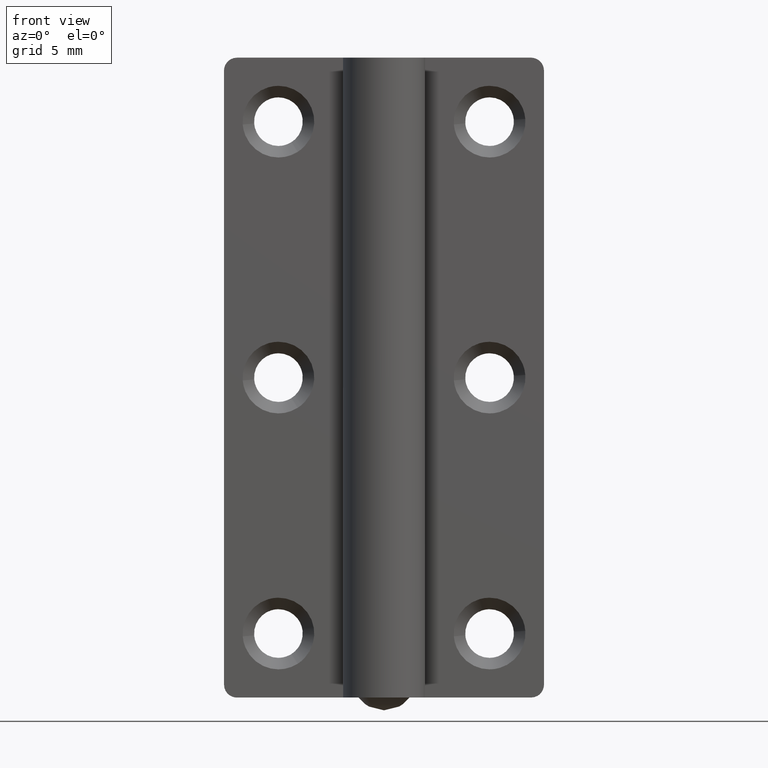
[diagram: clean part render]
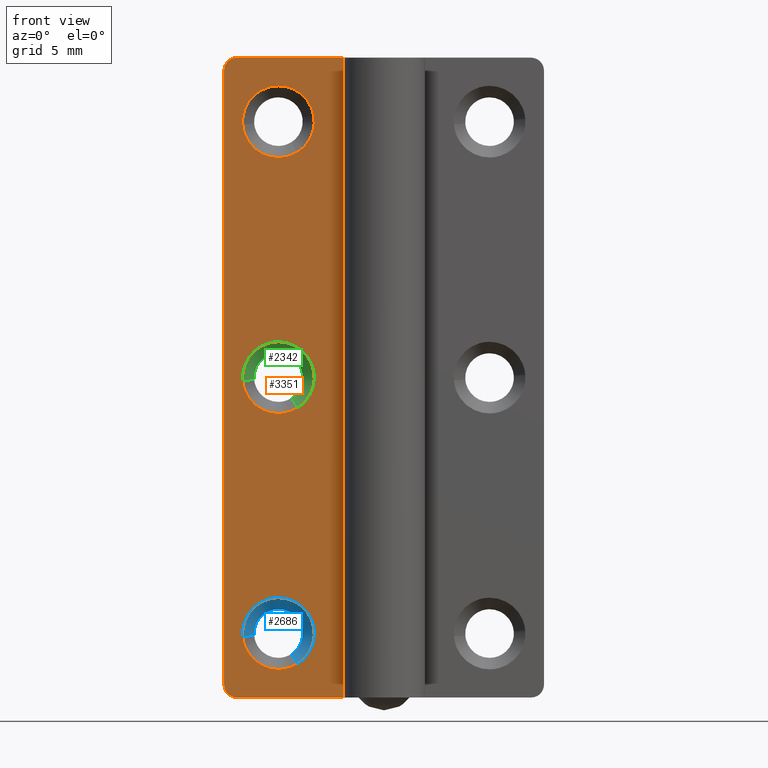
[diagram: same view with three faces highlighted in distinct colors, each labeled with its STEP entity id]
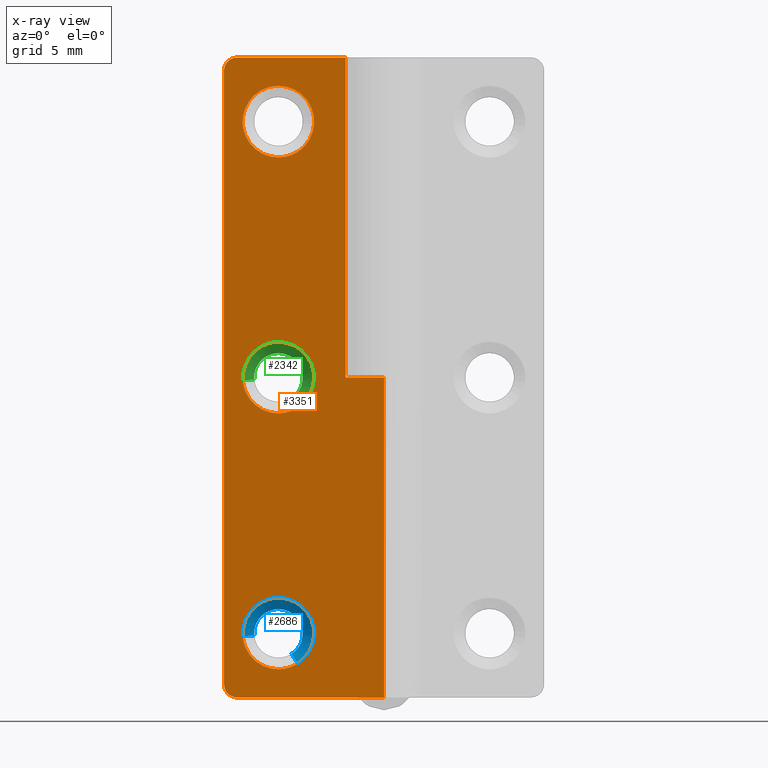
[diagram: x-ray of the same camera — body ghosted, the three highlighted faces saturated]
A machine part, front view with three faces highlighted in distinct colors.
The next image is the same camera in x-ray (body ghosted, the three faces saturated) — at least one of them is partly hidden behind the body in this view.
Their STEP definitions:

[orange] entity #3351 — the highlighted face is a freeform B-spline surface patch.
#1903=CARTESIAN_POINT('',(-6.744017771877991,1.999999999996397,42.639487853164482));
#1904=VERTEX_POINT('',#1903);
#1910=CARTESIAN_POINT('',(-8.250000000000000,2.0,47.800000011920929));
#1911=VERTEX_POINT('',#1910);
#1912=CARTESIAN_POINT('',(-8.250000000000000,2.0,47.800000011920929));
#1913=CARTESIAN_POINT('',(-5.449999988079070,2.000000000000000,47.800000011920929));
#1914=CARTESIAN_POINT('',(-5.449999988079070,2.0,45.0));
#1915=CARTESIAN_POINT('',(-5.449999988079069,2.000000000000000,43.465057756714870));
#1916=CARTESIAN_POINT('',(-6.744017771877993,1.999999999996397,42.639487853164475));
#1924=(BOUNDED_CURVE()B_SPLINE_CURVE(2,(#1912,#1913,#1914,#1915,#1916),.UNSPECIFIED.,.F.,.U.)B_SPLINE_CURVE_WITH_KNOTS((3,2,3),(0.0,0.250000000000000,0.407950112619935),.UNSPECIFIED.)CURVE()GEOMETRIC_REPRESENTATION_ITEM()RATIONAL_B_SPLINE_CURVE((1.0,0.707106781186548,1.0,0.814949932411200,0.863729296950220))REPRESENTATION_ITEM(''));
#1925=EDGE_CURVE('',#1911,#1904,#1924,.T.);
#1927=CARTESIAN_POINT('',(-11.041368546347060,1.999999999974803,44.780314530834119));
#1928=VERTEX_POINT('',#1927);
#1929=CARTESIAN_POINT('',(-11.041368546347053,1.999999999974804,44.780314530834119));
#1930=CARTESIAN_POINT('',(-11.050000011920927,2.000000000000000,44.889987699718631));
#1931=CARTESIAN_POINT('',(-11.050000011920931,2.0,45.0));
#1932=CARTESIAN_POINT('',(-11.050000011920931,2.000000000000000,47.800000011920929));
#1933=CARTESIAN_POINT('',(-8.250000000000000,2.0,47.800000011920929));
#1941=(BOUNDED_CURVE()B_SPLINE_CURVE(2,(#1929,#1930,#1931,#1932,#1933),.UNSPECIFIED.,.F.,.U.)B_SPLINE_CURVE_WITH_KNOTS((3,2,3),(0.736331300609352,0.750000000000000,1.0),.UNSPECIFIED.)CURVE()GEOMETRIC_REPRESENTATION_ITEM()RATIONAL_B_SPLINE_CURVE((0.969723356122951,0.983986122553919,1.0,0.707106781186548,1.0))REPRESENTATION_ITEM(''));
#1942=EDGE_CURVE('',#1928,#1911,#1941,.T.);
#2046=CARTESIAN_POINT('',(-8.250000000000000,2.0,42.199999988079057));
#2047=VERTEX_POINT('',#2046);
#2048=CARTESIAN_POINT('',(-8.250000000000000,2.0,42.199999988079057));
#2049=CARTESIAN_POINT('',(-10.838293387307939,2.000000000000000,42.199999988079071));
#2050=CARTESIAN_POINT('',(-11.041368546347060,1.999999999974804,44.780314530834119));
#2058=(BOUNDED_CURVE()B_SPLINE_CURVE(2,(#2048,#2049,#2050),.UNSPECIFIED.,.F.,.U.)B_SPLINE_CURVE_WITH_KNOTS((3,3),(0.500000000000000,0.736331300609351),.UNSPECIFIED.)CURVE()GEOMETRIC_REPRESENTATION_ITEM()RATIONAL_B_SPLINE_CURVE((1.0,0.723120658632630,0.969723356122949))REPRESENTATION_ITEM(''));
#2059=EDGE_CURVE('',#2047,#1928,#2058,.T.);
#2061=CARTESIAN_POINT('',(-6.744017771877993,1.999999999996397,42.639487853164475));
#2062=CARTESIAN_POINT('',(-7.432881441383225,2.0,42.199999988079071));
#2063=CARTESIAN_POINT('',(-8.250000000000000,2.0,42.199999988079057));
#2071=(BOUNDED_CURVE()B_SPLINE_CURVE(2,(#2061,#2062,#2063),.UNSPECIFIED.,.F.,.U.)B_SPLINE_CURVE_WITH_KNOTS((3,3),(0.407950112619935,0.500000000000000),.UNSPECIFIED.)CURVE()GEOMETRIC_REPRESENTATION_ITEM()RATIONAL_B_SPLINE_CURVE((0.863729296950220,0.892156848775348,1.0))REPRESENTATION_ITEM(''));
#2072=EDGE_CURVE('',#1904,#2047,#2071,.T.);
#2247=CARTESIAN_POINT('',(-6.744017771877992,1.999999999996397,22.639487853164479));
#2248=VERTEX_POINT('',#2247);
#2254=CARTESIAN_POINT('',(-8.250000000000000,2.0,27.800000011920929));
#2255=VERTEX_POINT('',#2254);
#2256=CARTESIAN_POINT('',(-8.250000000000000,2.0,27.800000011920929));
#2257=CARTESIAN_POINT('',(-5.449999988079070,2.000000000000000,27.800000011920940));
#2258=CARTESIAN_POINT('',(-5.449999988079070,2.0,25.0));
#2259=CARTESIAN_POINT('',(-5.449999988079069,2.000000000000000,23.465057756714874));
#2260=CARTESIAN_POINT('',(-6.744017771877993,1.999999999996397,22.639487853164482));
#2268=(BOUNDED_CURVE()B_SPLINE_CURVE(2,(#2256,#2257,#2258,#2259,#2260),.UNSPECIFIED.,.F.,.U.)B_SPLINE_CURVE_WITH_KNOTS((3,2,3),(0.0,0.250000000000000,0.407950112619935),.UNSPECIFIED.)CURVE()GEOMETRIC_REPRESENTATION_ITEM()RATIONAL_B_SPLINE_CURVE((1.0,0.707106781186548,1.0,0.814949932411200,0.863729296950220))REPRESENTATION_ITEM(''));
#2269=EDGE_CURVE('',#2255,#2248,#2268,.T.);
#2271=CARTESIAN_POINT('',(-11.041368546347060,1.999999999974803,24.780314530834112));
#2272=VERTEX_POINT('',#2271);
#2273=CARTESIAN_POINT('',(-11.041368546347060,1.999999999974803,24.780314530834108));
#2274=CARTESIAN_POINT('',(-11.050000011920927,2.000000000000000,24.889987699718624));
#2275=CARTESIAN_POINT('',(-11.050000011920931,2.0,25.0));
#2276=CARTESIAN_POINT('',(-11.050000011920931,2.000000000000000,27.800000011920940));
#2277=CARTESIAN_POINT('',(-8.250000000000000,2.0,27.800000011920929));
#2285=(BOUNDED_CURVE()B_SPLINE_CURVE(2,(#2273,#2274,#2275,#2276,#2277),.UNSPECIFIED.,.F.,.U.)B_SPLINE_CURVE_WITH_KNOTS((3,2,3),(0.736331300609351,0.750000000000000,1.0),.UNSPECIFIED.)CURVE()GEOMETRIC_REPRESENTATION_ITEM()RATIONAL_B_SPLINE_CURVE((0.969723356122949,0.983986122553918,1.0,0.707106781186548,1.0))REPRESENTATION_ITEM(''));
#2286=EDGE_CURVE('',#2272,#2255,#2285,.T.);
#2390=CARTESIAN_POINT('',(-8.250000000000000,2.0,22.199999988079071));
#2391=VERTEX_POINT('',#2390);
#2392=CARTESIAN_POINT('',(-8.250000000000000,2.0,22.199999988079071));
#2393=CARTESIAN_POINT('',(-10.838293387307939,2.000000000000000,22.199999988079071));
#2394=CARTESIAN_POINT('',(-11.041368546347060,1.999999999974803,24.780314530834108));
#2402=(BOUNDED_CURVE()B_SPLINE_CURVE(2,(#2392,#2393,#2394),.UNSPECIFIED.,.F.,.U.)B_SPLINE_CURVE_WITH_KNOTS((3,3),(0.500000000000000,0.736331300609351),.UNSPECIFIED.)CURVE()GEOMETRIC_REPRESENTATION_ITEM()RATIONAL_B_SPLINE_CURVE((1.0,0.723120658632630,0.969723356122949))REPRESENTATION_ITEM(''));
#2403=EDGE_CURVE('',#2391,#2272,#2402,.T.);
#2405=CARTESIAN_POINT('',(-6.744017771877993,1.999999999996397,22.639487853164482));
#2406=CARTESIAN_POINT('',(-7.432881441383225,2.0,22.199999988079075));
#2407=CARTESIAN_POINT('',(-8.250000000000000,2.0,22.199999988079071));
#2415=(BOUNDED_CURVE()B_SPLINE_CURVE(2,(#2405,#2406,#2407),.UNSPECIFIED.,.F.,.U.)B_SPLINE_CURVE_WITH_KNOTS((3,3),(0.407950112619935,0.500000000000000),.UNSPECIFIED.)CURVE()GEOMETRIC_REPRESENTATION_ITEM()RATIONAL_B_SPLINE_CURVE((0.863729296950220,0.892156848775348,1.0))REPRESENTATION_ITEM(''));
#2416=EDGE_CURVE('',#2248,#2391,#2415,.T.);
#2591=CARTESIAN_POINT('',(-6.744017771877991,1.999999999996397,2.639487853164477));
#2592=VERTEX_POINT('',#2591);
#2598=CARTESIAN_POINT('',(-8.250000000000000,2.0,7.800000011920930));
#2599=VERTEX_POINT('',#2598);
#2600=CARTESIAN_POINT('',(-8.250000000000000,2.0,7.800000011920930));
#2601=CARTESIAN_POINT('',(-5.449999988079070,2.000000000000000,7.800000011920929));
#2602=CARTESIAN_POINT('',(-5.449999988079070,2.0,5.0));
#2603=CARTESIAN_POINT('',(-5.449999988079069,2.000000000000000,3.465057756714876));
#2604=CARTESIAN_POINT('',(-6.744017771877993,1.999999999996397,2.639487853164477));
#2612=(BOUNDED_CURVE()B_SPLINE_CURVE(2,(#2600,#2601,#2602,#2603,#2604),.UNSPECIFIED.,.F.,.U.)B_SPLINE_CURVE_WITH_KNOTS((3,2,3),(0.0,0.250000000000000,0.407950112619935),.UNSPECIFIED.)CURVE()GEOMETRIC_REPRESENTATION_ITEM()RATIONAL_B_SPLINE_CURVE((1.0,0.707106781186548,1.0,0.814949932411200,0.863729296950220))REPRESENTATION_ITEM(''));
#2613=EDGE_CURVE('',#2599,#2592,#2612,.T.);
#2615=CARTESIAN_POINT('',(-11.041368546347060,1.999999999974804,4.780314530834112));
#2616=VERTEX_POINT('',#2615);
#2617=CARTESIAN_POINT('',(-11.041368546347055,1.999999999974804,4.780314530834112));
#2618=CARTESIAN_POINT('',(-11.050000011920934,2.000000000000000,4.889987699718628));
#2619=CARTESIAN_POINT('',(-11.050000011920931,2.0,5.0));
#2620=CARTESIAN_POINT('',(-11.050000011920931,2.000000000000000,7.800000011920929));
#2621=CARTESIAN_POINT('',(-8.250000000000000,2.0,7.800000011920930));
#2629=(BOUNDED_CURVE()B_SPLINE_CURVE(2,(#2617,#2618,#2619,#2620,#2621),.UNSPECIFIED.,.F.,.U.)B_SPLINE_CURVE_WITH_KNOTS((3,2,3),(0.736331300609352,0.750000000000000,1.0),.UNSPECIFIED.)CURVE()GEOMETRIC_REPRESENTATION_ITEM()RATIONAL_B_SPLINE_CURVE((0.969723356122950,0.983986122553918,1.0,0.707106781186548,1.0))REPRESENTATION_ITEM(''));
#2630=EDGE_CURVE('',#2616,#2599,#2629,.T.);
#2734=CARTESIAN_POINT('',(-8.250000000000000,2.0,2.199999988079070));
#2735=VERTEX_POINT('',#2734);
#2736=CARTESIAN_POINT('',(-8.250000000000000,2.0,2.199999988079070));
#2737=CARTESIAN_POINT('',(-10.838293387307939,2.000000000000000,2.199999988079071));
#2738=CARTESIAN_POINT('',(-11.041368546347060,1.999999999974804,4.780314530834112));
#2746=(BOUNDED_CURVE()B_SPLINE_CURVE(2,(#2736,#2737,#2738),.UNSPECIFIED.,.F.,.U.)B_SPLINE_CURVE_WITH_KNOTS((3,3),(0.500000000000000,0.736331300609351),.UNSPECIFIED.)CURVE()GEOMETRIC_REPRESENTATION_ITEM()RATIONAL_B_SPLINE_CURVE((1.0,0.723120658632630,0.969723356122949))REPRESENTATION_ITEM(''));
#2747=EDGE_CURVE('',#2735,#2616,#2746,.T.);
#2749=CARTESIAN_POINT('',(-6.744017771877993,1.999999999996397,2.639487853164477));
#2750=CARTESIAN_POINT('',(-7.432881441383225,2.0,2.199999988079070));
#2751=CARTESIAN_POINT('',(-8.250000000000000,2.0,2.199999988079070));
#2759=(BOUNDED_CURVE()B_SPLINE_CURVE(2,(#2749,#2750,#2751),.UNSPECIFIED.,.F.,.U.)B_SPLINE_CURVE_WITH_KNOTS((3,3),(0.407950112619935,0.500000000000000),.UNSPECIFIED.)CURVE()GEOMETRIC_REPRESENTATION_ITEM()RATIONAL_B_SPLINE_CURVE((0.863729296950220,0.892156848775348,1.0))REPRESENTATION_ITEM(''));
#2760=EDGE_CURVE('',#2592,#2735,#2759,.T.);
#2899=CARTESIAN_POINT('',(-3.0,2.0,25.0));
#2900=VERTEX_POINT('',#2899);
#2901=CARTESIAN_POINT('',(-3.0,2.0,50.0));
#2902=VERTEX_POINT('',#2901);
#2903=CARTESIAN_POINT('',(-3.0,2.0,25.0));
#2904=CARTESIAN_POINT('',(-3.0,2.0,50.0));
#2905=QUASI_UNIFORM_CURVE('',1,(#2903,#2904),.UNSPECIFIED.,.F.,.U.);
#2906=EDGE_CURVE('',#2900,#2902,#2905,.T.);
#2964=CARTESIAN_POINT('',(0.0,2.0,25.0));
#2965=VERTEX_POINT('',#2964);
#2966=CARTESIAN_POINT('',(0.0,2.0,25.0));
#2967=CARTESIAN_POINT('',(-3.0,2.0,25.0));
#2968=QUASI_UNIFORM_CURVE('',1,(#2966,#2967),.UNSPECIFIED.,.F.,.U.);
#2969=EDGE_CURVE('',#2965,#2900,#2968,.T.);
#3014=CARTESIAN_POINT('',(-11.500000000000000,2.0,50.0));
#3015=VERTEX_POINT('',#3014);
#3016=CARTESIAN_POINT('',(-12.500000000000000,2.0,49.0));
#3017=VERTEX_POINT('',#3016);
#3018=CARTESIAN_POINT('',(-11.500000000000000,2.0,50.0));
#3019=CARTESIAN_POINT('',(-12.500000000000000,2.000000000000000,50.0));
#3020=CARTESIAN_POINT('',(-12.500000000000000,2.0,49.0));
#3028=(BOUNDED_CURVE()B_SPLINE_CURVE(2,(#3018,#3019,#3020),.UNSPECIFIED.,.F.,.U.)CURVE()GEOMETRIC_REPRESENTATION_ITEM()QUASI_UNIFORM_CURVE()RATIONAL_B_SPLINE_CURVE((1.0,0.707106781186548,1.0))REPRESENTATION_ITEM(''));
#3029=EDGE_CURVE('',#3015,#3017,#3028,.T.);
#3075=CARTESIAN_POINT('',(-12.500000000000000,2.0,1.0));
#3076=VERTEX_POINT('',#3075);
#3077=CARTESIAN_POINT('',(-11.500000000000000,2.0,0.0));
#3078=VERTEX_POINT('',#3077);
#3079=CARTESIAN_POINT('',(-12.500000000000000,2.0,1.0));
#3080=CARTESIAN_POINT('',(-12.500000000000000,2.000000000000000,0.0));
#3081=CARTESIAN_POINT('',(-11.500000000000000,2.0,0.0));
#3089=(BOUNDED_CURVE()B_SPLINE_CURVE(2,(#3079,#3080,#3081),.UNSPECIFIED.,.F.,.U.)CURVE()GEOMETRIC_REPRESENTATION_ITEM()QUASI_UNIFORM_CURVE()RATIONAL_B_SPLINE_CURVE((1.0,0.707106781186548,1.0))REPRESENTATION_ITEM(''));
#3090=EDGE_CURVE('',#3076,#3078,#3089,.T.);
#3145=CARTESIAN_POINT('',(0.0,2.0,0.0));
#3146=VERTEX_POINT('',#3145);
#3147=CARTESIAN_POINT('',(0.0,2.0,0.0));
#3148=CARTESIAN_POINT('',(0.0,2.0,25.0));
#3149=QUASI_UNIFORM_CURVE('',1,(#3147,#3148),.UNSPECIFIED.,.F.,.U.);
#3150=EDGE_CURVE('',#3146,#2965,#3149,.T.);
#3208=CARTESIAN_POINT('',(-11.500000000000000,2.0,0.0));
#3209=CARTESIAN_POINT('',(0.0,2.0,0.0));
#3210=QUASI_UNIFORM_CURVE('',1,(#3208,#3209),.UNSPECIFIED.,.F.,.U.);
#3211=EDGE_CURVE('',#3078,#3146,#3210,.T.);
#3257=CARTESIAN_POINT('',(-12.500000000000000,2.0,1.0));
#3258=CARTESIAN_POINT('',(-12.500000000000000,2.0,49.0));
#3259=QUASI_UNIFORM_CURVE('',1,(#3257,#3258),.UNSPECIFIED.,.F.,.U.);
#3260=EDGE_CURVE('',#3076,#3017,#3259,.T.);
#3310=CARTESIAN_POINT('',(-11.500000000000000,2.0,50.0));
#3311=CARTESIAN_POINT('',(-3.0,2.0,50.0));
#3312=QUASI_UNIFORM_CURVE('',1,(#3310,#3311),.UNSPECIFIED.,.F.,.U.);
#3313=EDGE_CURVE('',#3015,#2902,#3312,.T.);
#3318=CARTESIAN_POINT('',(-13.124374975772570,2.0,52.497499903090286));
#3319=CARTESIAN_POINT('',(-13.124374975772570,2.0,-2.497501244194806));
#3320=CARTESIAN_POINT('',(0.624375311048700,2.0,52.497499903090301));
#3321=CARTESIAN_POINT('',(0.624375311048700,2.0,-2.497501244194806));
#3322=B_SPLINE_SURFACE_WITH_KNOTS('',1,1,((#3318,#3320),(#3319,#3321)),.UNSPECIFIED.,.F.,.F.,.U.,(2,2),(2,2),(0.0,54.995001147285109),(0.0,13.748750286821270),.UNSPECIFIED.);
#3323=ORIENTED_EDGE('',*,*,#2906,.T.);
#3324=ORIENTED_EDGE('',*,*,#3313,.F.);
#3325=ORIENTED_EDGE('',*,*,#3029,.T.);
#3326=ORIENTED_EDGE('',*,*,#3260,.F.);
#3327=ORIENTED_EDGE('',*,*,#3090,.T.);
#3328=ORIENTED_EDGE('',*,*,#3211,.T.);
#3329=ORIENTED_EDGE('',*,*,#3150,.T.);
#3330=ORIENTED_EDGE('',*,*,#2969,.T.);
#3331=EDGE_LOOP('',(#3323,#3324,#3325,#3326,#3327,#3328,#3329,#3330));
#3332=FACE_OUTER_BOUND('',#3331,.T.);
#3333=ORIENTED_EDGE('',*,*,#2747,.T.);
#3334=ORIENTED_EDGE('',*,*,#2630,.T.);
#3335=ORIENTED_EDGE('',*,*,#2613,.T.);
#3336=ORIENTED_EDGE('',*,*,#2760,.T.);
#3337=EDGE_LOOP('',(#3333,#3334,#3335,#3336));
#3338=FACE_BOUND('',#3337,.T.);
#3339=ORIENTED_EDGE('',*,*,#2403,.T.);
#3340=ORIENTED_EDGE('',*,*,#2286,.T.);
#3341=ORIENTED_EDGE('',*,*,#2269,.T.);
#3342=ORIENTED_EDGE('',*,*,#2416,.T.);
#3343=EDGE_LOOP('',(#3339,#3340,#3341,#3342));
#3344=FACE_BOUND('',#3343,.T.);
#3345=ORIENTED_EDGE('',*,*,#2059,.T.);
#3346=ORIENTED_EDGE('',*,*,#1942,.T.);
#3347=ORIENTED_EDGE('',*,*,#1925,.T.);
#3348=ORIENTED_EDGE('',*,*,#2072,.T.);
#3349=EDGE_LOOP('',(#3345,#3346,#3347,#3348));
#3350=FACE_BOUND('',#3349,.T.);
#3351=ADVANCED_FACE('',(#3332,#3338,#3344,#3350),#3322,.T.);

[blue] entity #2686 — the highlighted face is a freeform B-spline surface patch.
#2550=CARTESIAN_POINT('',(-7.240185181468855,2.922500036656855,3.417192380615796));
#2551=CARTESIAN_POINT('',(-6.289842363236610,2.922500036656856,4.023501226228337));
#2552=CARTESIAN_POINT('',(-6.378287791482151,2.922500036656856,5.147306945494832));
#2553=CARTESIAN_POINT('',(-6.525594736976985,2.922500036656857,7.019019154012681));
#2554=CARTESIAN_POINT('',(-8.397306945494831,2.922500036656856,6.871712208517849));
#2555=CARTESIAN_POINT('',(-10.269019154012680,2.922500036656857,6.724405263023017));
#2556=CARTESIAN_POINT('',(-10.121712208517851,2.922500036656856,4.852693054505168));
#2557=CARTESIAN_POINT('',(-6.731613586700700,1.976937499083578,2.620045239942711));
#2558=CARTESIAN_POINT('',(-5.302650972268734,1.976937499083579,3.531708543498079));
#2559=CARTESIAN_POINT('',(-5.435640045217584,1.976937499083578,5.221494932060234));
#2560=CARTESIAN_POINT('',(-5.657134977277818,1.976937499083579,8.035854886842651));
#2561=CARTESIAN_POINT('',(-8.471494932060233,1.976937499083578,7.814359954782416));
#2562=CARTESIAN_POINT('',(-11.285854886842650,1.976937499083579,7.592865022722181));
#2563=CARTESIAN_POINT('',(-11.064359954782420,1.976937499083578,4.778505067939766));
#2571=(BOUNDED_SURFACE()B_SPLINE_SURFACE(2,1,((#2550,#2557),(#2551,#2558),(#2552,#2559),(#2553,#2560),(#2554,#2561),(#2555,#2562),(#2556,#2563)),.UNSPECIFIED.,.F.,.F.,.U.)B_SPLINE_SURFACE_WITH_KNOTS((3,2,2,3),(2,2),(0.0,3.180634123985323,7.858037247493152,12.535440371000981),(0.0,1.0),.UNSPECIFIED.)GEOMETRIC_REPRESENTATION_ITEM()RATIONAL_B_SPLINE_SURFACE(((0.872532871172386,0.872532871172386),(0.800832611206852,0.800832611206852),(1.0,1.0),(0.707106781186548,0.707106781186548),(1.0,1.0),(0.707106781186548,0.707106781186548),(1.0,1.0)))REPRESENTATION_ITEM('')SURFACE());
#2572=CARTESIAN_POINT('',(-6.363281962058146,2.900000035762786,5.224265038475281));
#2573=VERTEX_POINT('',#2572);
#2574=CARTESIAN_POINT('',(-7.228083537174397,2.900000035752986,3.398223977596570));
#2575=VERTEX_POINT('',#2574);
#2576=CARTESIAN_POINT('',(-6.363281962058146,2.900000035762786,5.224265038475281));
#2577=CARTESIAN_POINT('',(-6.350000083446499,2.900000035762786,5.112525822411335));
#2578=CARTESIAN_POINT('',(-6.350000083446500,2.900000035762786,5.0));
#2579=CARTESIAN_POINT('',(-6.350000083446502,2.900000035762786,3.958432099554941));
#2580=CARTESIAN_POINT('',(-7.228083537174397,2.900000035752986,3.398223977596569));
#2588=(BOUNDED_CURVE()B_SPLINE_CURVE(2,(#2576,#2577,#2578,#2579,#2580),.UNSPECIFIED.,.F.,.U.)B_SPLINE_CURVE_WITH_KNOTS((3,2,3),(0.229562473513029,0.250000000000000,0.407950112598151),.UNSPECIFIED.)CURVE()GEOMETRIC_REPRESENTATION_ITEM()RATIONAL_B_SPLINE_CURVE((0.956026754182760,0.976055948330584,1.0,0.814949932436722,0.863729296936765))REPRESENTATION_ITEM(''));
#2589=EDGE_CURVE('',#2573,#2575,#2588,.T.);
#2590=ORIENTED_EDGE('',*,*,#2589,.T.);
#2591=CARTESIAN_POINT('',(-6.744017771877991,1.999999999996397,2.639487853164477));
#2592=VERTEX_POINT('',#2591);
#2593=CARTESIAN_POINT('',(-7.228083537174397,2.900000035752986,3.398223977596570));
#2594=CARTESIAN_POINT('',(-6.744017771877991,1.999999999996397,2.639487853164477));
#2595=QUASI_UNIFORM_CURVE('',1,(#2593,#2594),.UNSPECIFIED.,.F.,.U.);
#2596=EDGE_CURVE('',#2575,#2592,#2595,.T.);
#2597=ORIENTED_EDGE('',*,*,#2596,.T.);
#2598=CARTESIAN_POINT('',(-8.250000000000000,2.0,7.800000011920930));
#2599=VERTEX_POINT('',#2598);
#2600=CARTESIAN_POINT('',(-8.250000000000000,2.0,7.800000011920930));
#2601=CARTESIAN_POINT('',(-5.449999988079070,2.000000000000000,7.800000011920929));
#2602=CARTESIAN_POINT('',(-5.449999988079070,2.0,5.0));
#2603=CARTESIAN_POINT('',(-5.449999988079069,2.000000000000000,3.465057756714876));
#2604=CARTESIAN_POINT('',(-6.744017771877993,1.999999999996397,2.639487853164477));
#2612=(BOUNDED_CURVE()B_SPLINE_CURVE(2,(#2600,#2601,#2602,#2603,#2604),.UNSPECIFIED.,.F.,.U.)B_SPLINE_CURVE_WITH_KNOTS((3,2,3),(0.0,0.250000000000000,0.407950112619935),.UNSPECIFIED.)CURVE()GEOMETRIC_REPRESENTATION_ITEM()RATIONAL_B_SPLINE_CURVE((1.0,0.707106781186548,1.0,0.814949932411200,0.863729296950220))REPRESENTATION_ITEM(''));
#2613=EDGE_CURVE('',#2599,#2592,#2612,.T.);
#2614=ORIENTED_EDGE('',*,*,#2613,.F.);
#2615=CARTESIAN_POINT('',(-11.041368546347060,1.999999999974804,4.780314530834112));
#2616=VERTEX_POINT('',#2615);
#2617=CARTESIAN_POINT('',(-11.041368546347055,1.999999999974804,4.780314530834112));
#2618=CARTESIAN_POINT('',(-11.050000011920934,2.000000000000000,4.889987699718628));
#2619=CARTESIAN_POINT('',(-11.050000011920931,2.0,5.0));
#2620=CARTESIAN_POINT('',(-11.050000011920931,2.000000000000000,7.800000011920929));
#2621=CARTESIAN_POINT('',(-8.250000000000000,2.0,7.800000011920930));
#2629=(BOUNDED_CURVE()B_SPLINE_CURVE(2,(#2617,#2618,#2619,#2620,#2621),.UNSPECIFIED.,.F.,.U.)B_SPLINE_CURVE_WITH_KNOTS((3,2,3),(0.736331300609352,0.750000000000000,1.0),.UNSPECIFIED.)CURVE()GEOMETRIC_REPRESENTATION_ITEM()RATIONAL_B_SPLINE_CURVE((0.969723356122950,0.983986122553918,1.0,0.707106781186548,1.0))REPRESENTATION_ITEM(''));
#2630=EDGE_CURVE('',#2616,#2599,#2629,.T.);
#2631=ORIENTED_EDGE('',*,*,#2630,.F.);
#2632=CARTESIAN_POINT('',(-10.144142850910660,2.900000035745480,4.850927724532351));
#2633=VERTEX_POINT('',#2632);
#2634=CARTESIAN_POINT('',(-10.144142850910660,2.900000035745480,4.850927724532351));
#2635=CARTESIAN_POINT('',(-11.041368546347060,1.999999999974804,4.780314530834112));
#2636=QUASI_UNIFORM_CURVE('',1,(#2634,#2635),.UNSPECIFIED.,.F.,.U.);
#2637=EDGE_CURVE('',#2633,#2616,#2636,.T.);
#2638=ORIENTED_EDGE('',*,*,#2637,.F.);
#2639=CARTESIAN_POINT('',(-10.146456054532161,2.900000035762786,4.884007778684204));
#2640=VERTEX_POINT('',#2639);
#2641=CARTESIAN_POINT('',(-10.144142850910661,2.900000035745480,4.850927724532351));
#2642=CARTESIAN_POINT('',(-10.145443784932214,2.900000035762785,4.867457658749930));
#2643=CARTESIAN_POINT('',(-10.146456054532164,2.900000035762786,4.884007778684204));
#2651=(BOUNDED_CURVE()B_SPLINE_CURVE(2,(#2641,#2642,#2643),.UNSPECIFIED.,.F.,.U.)B_SPLINE_CURVE_WITH_KNOTS((3,3),(0.736331300609142,0.739332962238278),.UNSPECIFIED.)CURVE()GEOMETRIC_REPRESENTATION_ITEM()RATIONAL_B_SPLINE_CURVE((0.969723356122512,0.972855475536183,0.976072041665293))REPRESENTATION_ITEM(''));
#2652=EDGE_CURVE('',#2633,#2640,#2651,.T.);
#2653=ORIENTED_EDGE('',*,*,#2652,.T.);
#2654=CARTESIAN_POINT('',(-8.250000000000000,2.900000035762786,6.899999916553500));
#2655=VERTEX_POINT('',#2654);
#2656=CARTESIAN_POINT('',(-10.146456054532164,2.900000035762786,4.884007778684204));
#2657=CARTESIAN_POINT('',(-10.149999916553496,2.900000035762786,4.941949752261864));
#2658=CARTESIAN_POINT('',(-10.149999916553501,2.900000035762786,5.0));
#2659=CARTESIAN_POINT('',(-10.149999916553499,2.900000035762785,6.899999916553499));
#2660=CARTESIAN_POINT('',(-8.250000000000000,2.900000035762786,6.899999916553500));
#2668=(BOUNDED_CURVE()B_SPLINE_CURVE(2,(#2656,#2657,#2658,#2659,#2660),.UNSPECIFIED.,.F.,.U.)B_SPLINE_CURVE_WITH_KNOTS((3,2,3),(0.739332962238277,0.750000000000000,1.0),.UNSPECIFIED.)CURVE()GEOMETRIC_REPRESENTATION_ITEM()RATIONAL_B_SPLINE_CURVE((0.976072041665291,0.987502787899058,1.0,0.707106781186548,1.0))REPRESENTATION_ITEM(''));
#2669=EDGE_CURVE('',#2640,#2655,#2668,.T.);
#2670=ORIENTED_EDGE('',*,*,#2669,.T.);
#2671=CARTESIAN_POINT('',(-8.250000000000000,2.900000035762786,6.899999916553500));
#2672=CARTESIAN_POINT('',(-6.562468474833754,2.900000035762785,6.899999916553498));
#2673=CARTESIAN_POINT('',(-6.363281962058146,2.900000035762786,5.224265038475281));
#2681=(BOUNDED_CURVE()B_SPLINE_CURVE(2,(#2671,#2672,#2673),.UNSPECIFIED.,.F.,.U.)B_SPLINE_CURVE_WITH_KNOTS((3,3),(0.0,0.229562473513029),.UNSPECIFIED.)CURVE()GEOMETRIC_REPRESENTATION_ITEM()RATIONAL_B_SPLINE_CURVE((1.0,0.731050832855964,0.956026754182760))REPRESENTATION_ITEM(''));
#2682=EDGE_CURVE('',#2655,#2573,#2681,.T.);
#2683=ORIENTED_EDGE('',*,*,#2682,.T.);
#2684=EDGE_LOOP('',(#2590,#2597,#2614,#2631,#2638,#2653,#2670,#2683));
#2685=FACE_OUTER_BOUND('',#2684,.T.);
#2686=ADVANCED_FACE('',(#2685),#2571,.F.);

[green] entity #2342 — the highlighted face is a freeform B-spline surface patch.
#2206=CARTESIAN_POINT('',(-7.240185181468855,2.922500036656855,23.417192380615795));
#2207=CARTESIAN_POINT('',(-6.289842363236610,2.922500036656856,24.023501226228333));
#2208=CARTESIAN_POINT('',(-6.378287791482151,2.922500036656856,25.147306945494829));
#2209=CARTESIAN_POINT('',(-6.525594736976985,2.922500036656857,27.019019154012678));
#2210=CARTESIAN_POINT('',(-8.397306945494831,2.922500036656856,26.871712208517849));
#2211=CARTESIAN_POINT('',(-10.269019154012680,2.922500036656857,26.724405263023023));
#2212=CARTESIAN_POINT('',(-10.121712208517851,2.922500036656856,24.852693054505171));
#2213=CARTESIAN_POINT('',(-6.731613586700700,1.976937499083578,22.620045239942712));
#2214=CARTESIAN_POINT('',(-5.302650972268734,1.976937499083579,23.531708543498084));
#2215=CARTESIAN_POINT('',(-5.435640045217584,1.976937499083578,25.221494932060239));
#2216=CARTESIAN_POINT('',(-5.657134977277818,1.976937499083579,28.035854886842653));
#2217=CARTESIAN_POINT('',(-8.471494932060233,1.976937499083578,27.814359954782422));
#2218=CARTESIAN_POINT('',(-11.285854886842650,1.976937499083579,27.592865022722172));
#2219=CARTESIAN_POINT('',(-11.064359954782420,1.976937499083578,24.778505067939768));
#2227=(BOUNDED_SURFACE()B_SPLINE_SURFACE(2,1,((#2206,#2213),(#2207,#2214),(#2208,#2215),(#2209,#2216),(#2210,#2217),(#2211,#2218),(#2212,#2219)),.UNSPECIFIED.,.F.,.F.,.U.)B_SPLINE_SURFACE_WITH_KNOTS((3,2,2,3),(2,2),(0.0,3.180634123985327,7.858037247493162,12.535440371001000),(0.0,1.0),.UNSPECIFIED.)GEOMETRIC_REPRESENTATION_ITEM()RATIONAL_B_SPLINE_SURFACE(((0.872532871172386,0.872532871172386),(0.800832611206852,0.800832611206852),(1.0,1.0),(0.707106781186548,0.707106781186548),(1.0,1.0),(0.707106781186548,0.707106781186548),(1.0,1.0)))REPRESENTATION_ITEM('')SURFACE());
#2228=CARTESIAN_POINT('',(-6.363281962058146,2.900000035762786,25.224265038475281));
#2229=VERTEX_POINT('',#2228);
#2230=CARTESIAN_POINT('',(-7.228083537174399,2.900000035752987,23.398223977596569));
#2231=VERTEX_POINT('',#2230);
#2232=CARTESIAN_POINT('',(-6.363281962058147,2.900000035762786,25.224265038475277));
#2233=CARTESIAN_POINT('',(-6.350000083446502,2.900000035762786,25.112525822411332));
#2234=CARTESIAN_POINT('',(-6.350000083446500,2.900000035762786,25.0));
#2235=CARTESIAN_POINT('',(-6.350000083446503,2.900000035762786,23.958432099554944));
#2236=CARTESIAN_POINT('',(-7.228083537174399,2.900000035752987,23.398223977596576));
#2244=(BOUNDED_CURVE()B_SPLINE_CURVE(2,(#2232,#2233,#2234,#2235,#2236),.UNSPECIFIED.,.F.,.U.)B_SPLINE_CURVE_WITH_KNOTS((3,2,3),(0.229562473513030,0.250000000000000,0.407950112598151),.UNSPECIFIED.)CURVE()GEOMETRIC_REPRESENTATION_ITEM()RATIONAL_B_SPLINE_CURVE((0.956026754182761,0.976055948330584,1.0,0.814949932436721,0.863729296936765))REPRESENTATION_ITEM(''));
#2245=EDGE_CURVE('',#2229,#2231,#2244,.T.);
#2246=ORIENTED_EDGE('',*,*,#2245,.T.);
#2247=CARTESIAN_POINT('',(-6.744017771877992,1.999999999996397,22.639487853164479));
#2248=VERTEX_POINT('',#2247);
#2249=CARTESIAN_POINT('',(-7.228083537174399,2.900000035752987,23.398223977596569));
#2250=CARTESIAN_POINT('',(-6.744017771877992,1.999999999996397,22.639487853164479));
#2251=QUASI_UNIFORM_CURVE('',1,(#2249,#2250),.UNSPECIFIED.,.F.,.U.);
#2252=EDGE_CURVE('',#2231,#2248,#2251,.T.);
#2253=ORIENTED_EDGE('',*,*,#2252,.T.);
#2254=CARTESIAN_POINT('',(-8.250000000000000,2.0,27.800000011920929));
#2255=VERTEX_POINT('',#2254);
#2256=CARTESIAN_POINT('',(-8.250000000000000,2.0,27.800000011920929));
#2257=CARTESIAN_POINT('',(-5.449999988079070,2.000000000000000,27.800000011920940));
#2258=CARTESIAN_POINT('',(-5.449999988079070,2.0,25.0));
#2259=CARTESIAN_POINT('',(-5.449999988079069,2.000000000000000,23.465057756714874));
#2260=CARTESIAN_POINT('',(-6.744017771877993,1.999999999996397,22.639487853164482));
#2268=(BOUNDED_CURVE()B_SPLINE_CURVE(2,(#2256,#2257,#2258,#2259,#2260),.UNSPECIFIED.,.F.,.U.)B_SPLINE_CURVE_WITH_KNOTS((3,2,3),(0.0,0.250000000000000,0.407950112619935),.UNSPECIFIED.)CURVE()GEOMETRIC_REPRESENTATION_ITEM()RATIONAL_B_SPLINE_CURVE((1.0,0.707106781186548,1.0,0.814949932411200,0.863729296950220))REPRESENTATION_ITEM(''));
#2269=EDGE_CURVE('',#2255,#2248,#2268,.T.);
#2270=ORIENTED_EDGE('',*,*,#2269,.F.);
#2271=CARTESIAN_POINT('',(-11.041368546347060,1.999999999974803,24.780314530834112));
#2272=VERTEX_POINT('',#2271);
#2273=CARTESIAN_POINT('',(-11.041368546347060,1.999999999974803,24.780314530834108));
#2274=CARTESIAN_POINT('',(-11.050000011920927,2.000000000000000,24.889987699718624));
#2275=CARTESIAN_POINT('',(-11.050000011920931,2.0,25.0));
#2276=CARTESIAN_POINT('',(-11.050000011920931,2.000000000000000,27.800000011920940));
#2277=CARTESIAN_POINT('',(-8.250000000000000,2.0,27.800000011920929));
#2285=(BOUNDED_CURVE()B_SPLINE_CURVE(2,(#2273,#2274,#2275,#2276,#2277),.UNSPECIFIED.,.F.,.U.)B_SPLINE_CURVE_WITH_KNOTS((3,2,3),(0.736331300609351,0.750000000000000,1.0),.UNSPECIFIED.)CURVE()GEOMETRIC_REPRESENTATION_ITEM()RATIONAL_B_SPLINE_CURVE((0.969723356122949,0.983986122553918,1.0,0.707106781186548,1.0))REPRESENTATION_ITEM(''));
#2286=EDGE_CURVE('',#2272,#2255,#2285,.T.);
#2287=ORIENTED_EDGE('',*,*,#2286,.F.);
#2288=CARTESIAN_POINT('',(-10.144142850910660,2.900000035745480,24.850927724532351));
#2289=VERTEX_POINT('',#2288);
#2290=CARTESIAN_POINT('',(-10.144142850910660,2.900000035745480,24.850927724532351));
#2291=CARTESIAN_POINT('',(-11.041368546347060,1.999999999974803,24.780314530834112));
#2292=QUASI_UNIFORM_CURVE('',1,(#2290,#2291),.UNSPECIFIED.,.F.,.U.);
#2293=EDGE_CURVE('',#2289,#2272,#2292,.T.);
#2294=ORIENTED_EDGE('',*,*,#2293,.F.);
#2295=CARTESIAN_POINT('',(-10.146456054532161,2.900000035762786,24.884007778684200));
#2296=VERTEX_POINT('',#2295);
#2297=CARTESIAN_POINT('',(-10.144142850910660,2.900000035745480,24.850927724532351));
#2298=CARTESIAN_POINT('',(-10.145443784932215,2.900000035762786,24.867457658749931));
#2299=CARTESIAN_POINT('',(-10.146456054532164,2.900000035762786,24.884007778684207));
#2307=(BOUNDED_CURVE()B_SPLINE_CURVE(2,(#2297,#2298,#2299),.UNSPECIFIED.,.F.,.U.)B_SPLINE_CURVE_WITH_KNOTS((3,3),(0.736331300609142,0.739332962238278),.UNSPECIFIED.)CURVE()GEOMETRIC_REPRESENTATION_ITEM()RATIONAL_B_SPLINE_CURVE((0.969723356122513,0.972855475536184,0.976072041665294))REPRESENTATION_ITEM(''));
#2308=EDGE_CURVE('',#2289,#2296,#2307,.T.);
#2309=ORIENTED_EDGE('',*,*,#2308,.T.);
#2310=CARTESIAN_POINT('',(-8.250000000000000,2.900000035762786,26.899999916553501));
#2311=VERTEX_POINT('',#2310);
#2312=CARTESIAN_POINT('',(-10.146456054532164,2.900000035762786,24.884007778684211));
#2313=CARTESIAN_POINT('',(-10.149999916553496,2.900000035762786,24.941949752261863));
#2314=CARTESIAN_POINT('',(-10.149999916553501,2.900000035762786,25.0));
#2315=CARTESIAN_POINT('',(-10.149999916553499,2.900000035762785,26.899999916553494));
#2316=CARTESIAN_POINT('',(-8.250000000000000,2.900000035762786,26.899999916553501));
#2324=(BOUNDED_CURVE()B_SPLINE_CURVE(2,(#2312,#2313,#2314,#2315,#2316),.UNSPECIFIED.,.F.,.U.)B_SPLINE_CURVE_WITH_KNOTS((3,2,3),(0.739332962238277,0.750000000000000,1.0),.UNSPECIFIED.)CURVE()GEOMETRIC_REPRESENTATION_ITEM()RATIONAL_B_SPLINE_CURVE((0.976072041665291,0.987502787899058,1.0,0.707106781186548,1.0))REPRESENTATION_ITEM(''));
#2325=EDGE_CURVE('',#2296,#2311,#2324,.T.);
#2326=ORIENTED_EDGE('',*,*,#2325,.T.);
#2327=CARTESIAN_POINT('',(-8.250000000000000,2.900000035762786,26.899999916553501));
#2328=CARTESIAN_POINT('',(-6.562468474833747,2.900000035762786,26.899999916553504));
#2329=CARTESIAN_POINT('',(-6.363281962058147,2.900000035762786,25.224265038475277));
#2337=(BOUNDED_CURVE()B_SPLINE_CURVE(2,(#2327,#2328,#2329),.UNSPECIFIED.,.F.,.U.)B_SPLINE_CURVE_WITH_KNOTS((3,3),(0.0,0.229562473513030),.UNSPECIFIED.)CURVE()GEOMETRIC_REPRESENTATION_ITEM()RATIONAL_B_SPLINE_CURVE((1.0,0.731050832855963,0.956026754182761))REPRESENTATION_ITEM(''));
#2338=EDGE_CURVE('',#2311,#2229,#2337,.T.);
#2339=ORIENTED_EDGE('',*,*,#2338,.T.);
#2340=EDGE_LOOP('',(#2246,#2253,#2270,#2287,#2294,#2309,#2326,#2339));
#2341=FACE_OUTER_BOUND('',#2340,.T.);
#2342=ADVANCED_FACE('',(#2341),#2227,.F.);